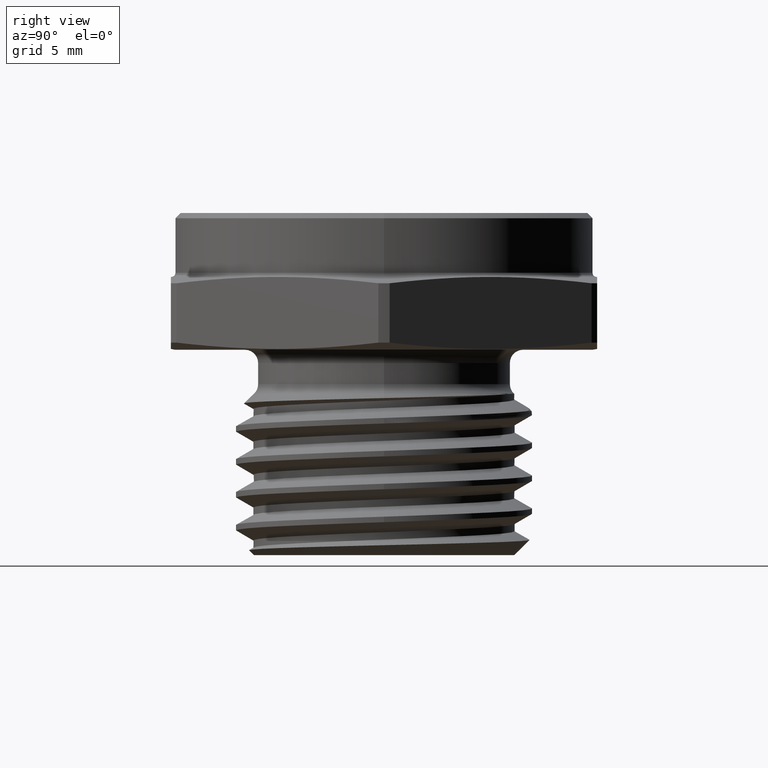
[diagram: clean part render]
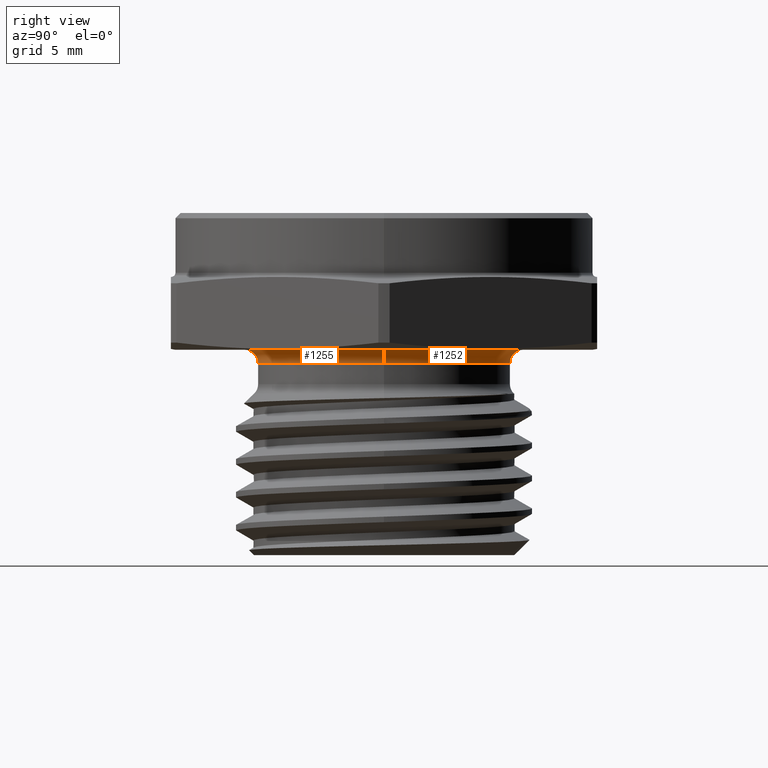
[diagram: same view with one multi-face feature highlighted, each face labeled with its STEP entity id]
A machine part, right view. The highlighted faces form ONE feature: a constant-radius fillet chain: 2 tangent blend faces with common blend radius 0.635 mm. The faces share edges in the B-rep.
Their STEP definitions:
[1] entity #1252 (Torus):
#100 = CIRCLE ( 'NONE', #253, 0.2404999999999999900 ) ;
#103 = CIRCLE ( 'NONE', #257, 0.02500000000000000500 ) ;
#105 = CIRCLE ( 'NONE', #255, 0.02500000000000001200 ) ;
#221 = AXIS2_PLACEMENT_3D ( 'NONE', #1757, #1758, #1759 ) ;
#253 = AXIS2_PLACEMENT_3D ( 'NONE', #2326, #2327, #2328 ) ;
#255 = AXIS2_PLACEMENT_3D ( 'NONE', #2332, #2333, #2334 ) ;
#257 = AXIS2_PLACEMENT_3D ( 'NONE', #2340, #2341, #2342 ) ;
#309 = AXIS2_PLACEMENT_3D ( 'NONE', #899, #898, #901 ) ;
#593 = TOROIDAL_SURFACE ( 'NONE', #309, 0.2655000000000000100, 0.02500000000000000500 ) ;
#594 = FACE_OUTER_BOUND ( 'NONE', #1328, .T. ) ;
#646 = EDGE_CURVE ( 'NONE', #2560, #2565, #1287, .T. ) ;
#716 = EDGE_CURVE ( 'NONE', #2554, #2555, #100, .T. ) ;
#719 = EDGE_CURVE ( 'NONE', #2560, #2554, #105, .T. ) ;
#721 = EDGE_CURVE ( 'NONE', #2565, #2555, #103, .T. ) ;
#898 = DIRECTION ( 'NONE',  ( -0.0000000000000000000, -0.0000000000000000000, 1.000000000000000000 ) ) ;
#899 = CARTESIAN_POINT ( 'NONE',  ( 0.0000000000000000000, 0.0000000000000000000, -0.02500000000000003600 ) ) ;
#901 = DIRECTION ( 'NONE',  ( 1.000000000000000000, 0.0000000000000000000, 0.0000000000000000000 ) ) ;
#950 = CARTESIAN_POINT ( 'NONE',  ( 0.2404999999999999900, 0.0000000000000000000, -0.02500000000000004000 ) ) ;
#951 = CARTESIAN_POINT ( 'NONE',  ( -0.2404999999999999900, 2.945275551949384100E-017, -0.02500000000000004000 ) ) ;
#956 = CARTESIAN_POINT ( 'NONE',  ( 0.2655000000000000100, 0.0000000000000000000, -3.201384367575308300E-017 ) ) ;
#961 = CARTESIAN_POINT ( 'NONE',  ( -0.2655000000000000100, 3.251437251736223000E-017, -3.201384367575308300E-017 ) ) ;
#1252 = ADVANCED_FACE ( 'NONE', ( #594 ), #593, .F. ) ;
#1287 = CIRCLE ( 'NONE', #221, 0.2655000000000000100 ) ;
#1328 = EDGE_LOOP ( 'NONE', ( #1970, #1971, #1972, #1973 ) ) ;
#1757 = CARTESIAN_POINT ( 'NONE',  ( 0.0000000000000000000, 0.0000000000000000000, -3.414809992080329000E-017 ) ) ;
#1758 = DIRECTION ( 'NONE',  ( -0.0000000000000000000, -0.0000000000000000000, 1.000000000000000000 ) ) ;
#1759 = DIRECTION ( 'NONE',  ( 1.000000000000000000, 0.0000000000000000000, 0.0000000000000000000 ) ) ;
#1970 = ORIENTED_EDGE ( 'NONE', *, *, #721, .F. ) ;
#1971 = ORIENTED_EDGE ( 'NONE', *, *, #646, .F. ) ;
#1972 = ORIENTED_EDGE ( 'NONE', *, *, #719, .T. ) ;
#1973 = ORIENTED_EDGE ( 'NONE', *, *, #716, .T. ) ;
#2326 = CARTESIAN_POINT ( 'NONE',  ( 0.0000000000000000000, 0.0000000000000000000, -0.02500000000000004000 ) ) ;
#2327 = DIRECTION ( 'NONE',  ( -0.0000000000000000000, -0.0000000000000000000, 1.000000000000000000 ) ) ;
#2328 = DIRECTION ( 'NONE',  ( 1.000000000000000000, 0.0000000000000000000, 0.0000000000000000000 ) ) ;
#2332 = CARTESIAN_POINT ( 'NONE',  ( 0.2655000000000000100, 0.0000000000000000000, -0.02500000000000003600 ) ) ;
#2333 = DIRECTION ( 'NONE',  ( 0.0000000000000000000, -1.000000000000000000, 0.0000000000000000000 ) ) ;
#2334 = DIRECTION ( 'NONE',  ( 0.0000000000000000000, 0.0000000000000000000, -1.000000000000000000 ) ) ;
#2340 = CARTESIAN_POINT ( 'NONE',  ( -0.2655000000000000100, 3.251437251736223000E-017, -0.02500000000000003600 ) ) ;
#2341 = DIRECTION ( 'NONE',  ( 1.224646799147353200E-016, 1.000000000000000000, 0.0000000000000000000 ) ) ;
#2342 = DIRECTION ( 'NONE',  ( -1.000000000000000000, 1.224646799147351700E-016, 0.0000000000000000000 ) ) ;
#2554 = VERTEX_POINT ( 'NONE', #950 ) ;
#2555 = VERTEX_POINT ( 'NONE', #951 ) ;
#2560 = VERTEX_POINT ( 'NONE', #956 ) ;
#2565 = VERTEX_POINT ( 'NONE', #961 ) ;
[2] entity #1255 (Torus):
#13 = ORIENTED_EDGE ( 'NONE', *, *, #719, .F. ) ;
#14 = ORIENTED_EDGE ( 'NONE', *, *, #721, .T. ) ;
#15 = ORIENTED_EDGE ( 'NONE', *, *, #720, .T. ) ;
#103 = CIRCLE ( 'NONE', #257, 0.02500000000000000500 ) ;
#105 = CIRCLE ( 'NONE', #255, 0.02500000000000001200 ) ;
#106 = CIRCLE ( 'NONE', #256, 0.2404999999999999900 ) ;
#255 = AXIS2_PLACEMENT_3D ( 'NONE', #2332, #2333, #2334 ) ;
#256 = AXIS2_PLACEMENT_3D ( 'NONE', #2335, #2336, #2337 ) ;
#257 = AXIS2_PLACEMENT_3D ( 'NONE', #2340, #2341, #2342 ) ;
#258 = AXIS2_PLACEMENT_3D ( 'NONE', #2345, #2346, #2347 ) ;
#311 = AXIS2_PLACEMENT_3D ( 'NONE', #908, #907, #910 ) ;
#385 = ORIENTED_EDGE ( 'NONE', *, *, #722, .F. ) ;
#597 = FACE_OUTER_BOUND ( 'NONE', #1310, .T. ) ;
#601 = TOROIDAL_SURFACE ( 'NONE', #311, 0.2655000000000000100, 0.02500000000000000500 ) ;
#719 = EDGE_CURVE ( 'NONE', #2560, #2554, #105, .T. ) ;
#720 = EDGE_CURVE ( 'NONE', #2555, #2554, #106, .T. ) ;
#721 = EDGE_CURVE ( 'NONE', #2565, #2555, #103, .T. ) ;
#722 = EDGE_CURVE ( 'NONE', #2565, #2560, #1300, .T. ) ;
#907 = DIRECTION ( 'NONE',  ( -0.0000000000000000000, -0.0000000000000000000, 1.000000000000000000 ) ) ;
#908 = CARTESIAN_POINT ( 'NONE',  ( 0.0000000000000000000, 0.0000000000000000000, -0.02500000000000003600 ) ) ;
#910 = DIRECTION ( 'NONE',  ( 1.000000000000000000, 0.0000000000000000000, 0.0000000000000000000 ) ) ;
#950 = CARTESIAN_POINT ( 'NONE',  ( 0.2404999999999999900, 0.0000000000000000000, -0.02500000000000004000 ) ) ;
#951 = CARTESIAN_POINT ( 'NONE',  ( -0.2404999999999999900, 2.945275551949384100E-017, -0.02500000000000004000 ) ) ;
#956 = CARTESIAN_POINT ( 'NONE',  ( 0.2655000000000000100, 0.0000000000000000000, -3.201384367575308300E-017 ) ) ;
#961 = CARTESIAN_POINT ( 'NONE',  ( -0.2655000000000000100, 3.251437251736223000E-017, -3.201384367575308300E-017 ) ) ;
#1255 = ADVANCED_FACE ( 'NONE', ( #597 ), #601, .F. ) ;
#1300 = CIRCLE ( 'NONE', #258, 0.2655000000000000100 ) ;
#1310 = EDGE_LOOP ( 'NONE', ( #385, #14, #15, #13 ) ) ;
#2332 = CARTESIAN_POINT ( 'NONE',  ( 0.2655000000000000100, 0.0000000000000000000, -0.02500000000000003600 ) ) ;
#2333 = DIRECTION ( 'NONE',  ( 0.0000000000000000000, -1.000000000000000000, 0.0000000000000000000 ) ) ;
#2334 = DIRECTION ( 'NONE',  ( 0.0000000000000000000, 0.0000000000000000000, -1.000000000000000000 ) ) ;
#2335 = CARTESIAN_POINT ( 'NONE',  ( 0.0000000000000000000, 0.0000000000000000000, -0.02500000000000004000 ) ) ;
#2336 = DIRECTION ( 'NONE',  ( -0.0000000000000000000, -0.0000000000000000000, 1.000000000000000000 ) ) ;
#2337 = DIRECTION ( 'NONE',  ( 1.000000000000000000, 0.0000000000000000000, 0.0000000000000000000 ) ) ;
#2340 = CARTESIAN_POINT ( 'NONE',  ( -0.2655000000000000100, 3.251437251736223000E-017, -0.02500000000000003600 ) ) ;
#2341 = DIRECTION ( 'NONE',  ( 1.224646799147353200E-016, 1.000000000000000000, 0.0000000000000000000 ) ) ;
#2342 = DIRECTION ( 'NONE',  ( -1.000000000000000000, 1.224646799147351700E-016, 0.0000000000000000000 ) ) ;
#2345 = CARTESIAN_POINT ( 'NONE',  ( 0.0000000000000000000, 0.0000000000000000000, -3.414809992080329000E-017 ) ) ;
#2346 = DIRECTION ( 'NONE',  ( -0.0000000000000000000, -0.0000000000000000000, 1.000000000000000000 ) ) ;
#2347 = DIRECTION ( 'NONE',  ( 1.000000000000000000, 0.0000000000000000000, 0.0000000000000000000 ) ) ;
#2554 = VERTEX_POINT ( 'NONE', #950 ) ;
#2555 = VERTEX_POINT ( 'NONE', #951 ) ;
#2560 = VERTEX_POINT ( 'NONE', #956 ) ;
#2565 = VERTEX_POINT ( 'NONE', #961 ) ;